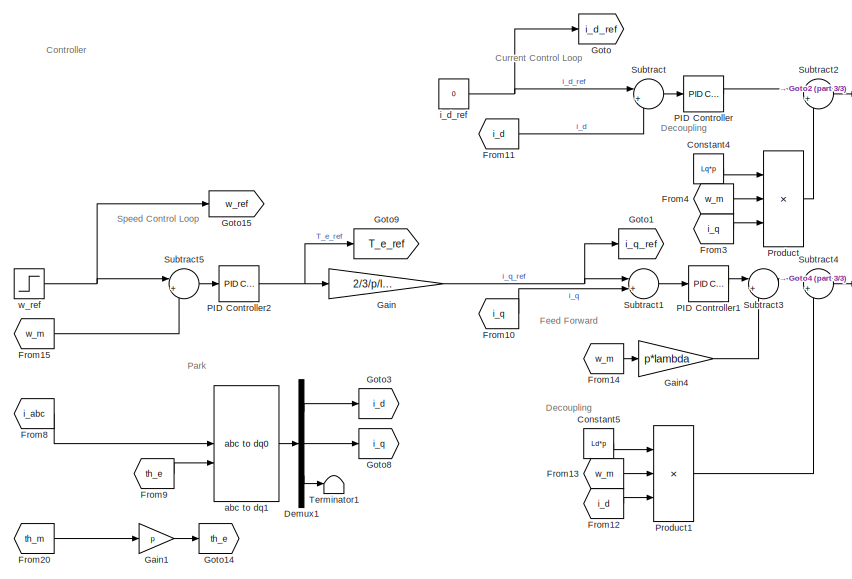
[diagram: root canvas - part 1/3, left side, full height]
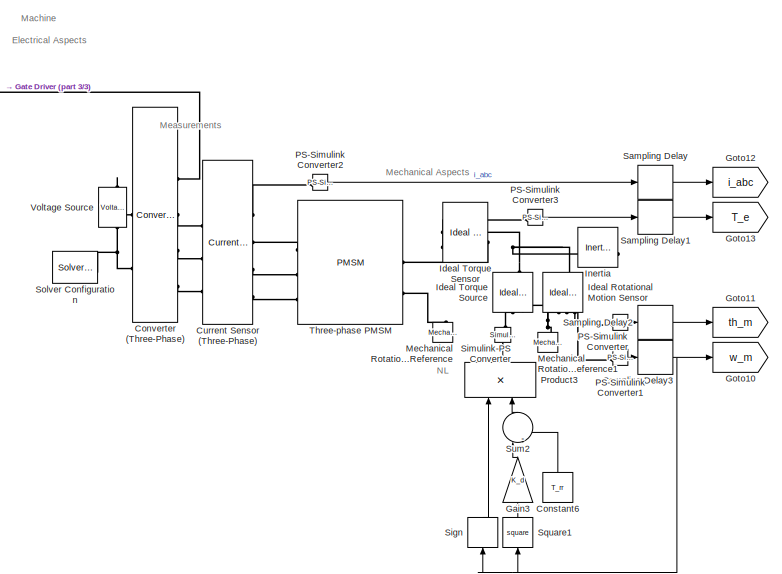
[diagram: root canvas - part 2/3, right side, full height]
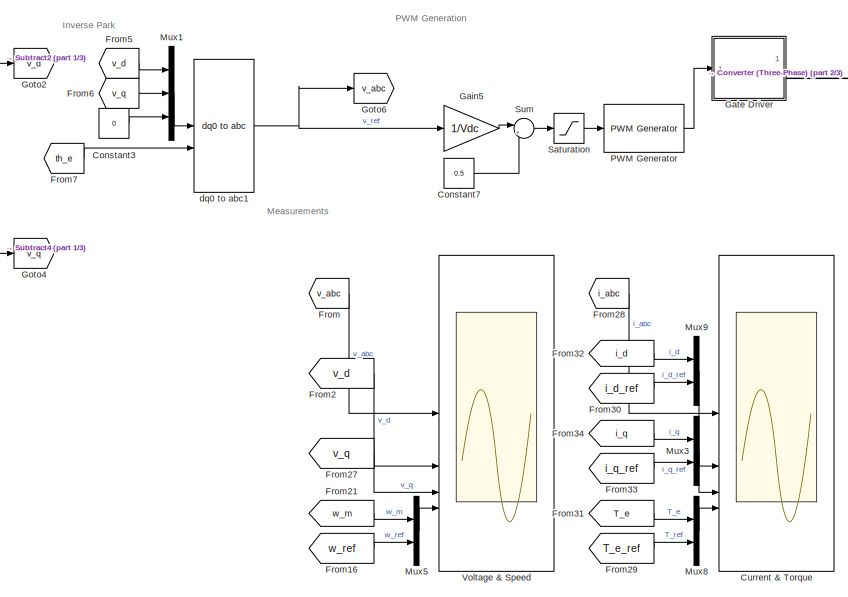
[diagram: root canvas - part 3/3, center side, full height]
MODEL slx_c1660a589263
KIND model
CONFIG AbsTol = auto
CONFIG EnableMultiTasking = off
CONFIG FixedStep = auto
CONFIG MaxStep = auto
CONFIG MinStep = auto
CONFIG RelTol = 1e-3
CONFIG SampleTimeConstraint = Unconstrained
CONFIG SolverName = VariableStepAuto
CONFIG StartTime = 0.0
CONFIG StopTime = 10.0
BLOCK [Constant] Constant3
  Value = 0
BLOCK [Constant] Constant4
  Value = Lq*p
BLOCK [Constant] Constant5
  Value = Ld*p
BLOCK [Constant] Constant6
  Commented = on
  NameLocation = right
  Value = T_rr
BLOCK [Constant] Constant7
  Value = 0.5
BLOCK [Reference] Converter (Three-Phase)  REF=ee_lib/Semiconductors &
Converters/Converters/Converter
(Three-Phase)
  SourceBlock = ee_lib/Semiconductors &\nConverters/Converters/Converter\n(Three-Phase)
  SourceType = Converter\n(Three-Phase)
BLOCK [Scope] Current & Torque
  Floating = off
  NumInputPorts = 4
  ScopeSpecificationString = Simulink.scopes.TimeScopeBlockCfg('CurrentConfiguration', extmgr.ConfigurationSet(extmgr.Configuration('Core','General UI',true,'FigureColor',[1 1 1]),extmgr.Configuration('Core','Source UI',true),extmgr.Configuration('Sources','WiredSimulink',true,'DataLogging',true,'DataLoggingSaveFormat','StructureWithTime','DataLoggingVariableName','ScopeData1'),extmgr.Configuration('Visuals','Time Domain',tru...<+4909ch>
BLOCK [Reference] Current Sensor (Three-Phase)  REF=ee_lib/Sensors &
Transducers/Current Sensor
(Three-Phase)
  SourceBlock = ee_lib/Sensors &\nTransducers/Current Sensor\n(Three-Phase)
  SourceType = Current Sensor\n(Three-Phase)
BLOCK [Demux] Demux1
  Outputs = 3
BLOCK [From] From
  GotoTag = v_abc
BLOCK [From] From10
  GotoTag = i_q
BLOCK [From] From11
  GotoTag = i_d
BLOCK [From] From12
  GotoTag = i_d
BLOCK [From] From13
  GotoTag = w_m
BLOCK [From] From14
  GotoTag = w_m
BLOCK [From] From15
  GotoTag = w_m
BLOCK [From] From16
  GotoTag = w_ref
BLOCK [From] From2
  GotoTag = v_d
BLOCK [From] From20
  GotoTag = th_m
BLOCK [From] From21
  GotoTag = w_m
BLOCK [From] From27
  GotoTag = v_q
BLOCK [From] From28
  GotoTag = i_abc
BLOCK [From] From29
  GotoTag = T_e_ref
BLOCK [From] From3
  GotoTag = i_q
BLOCK [From] From30
  GotoTag = i_d_ref
BLOCK [From] From31
  GotoTag = T_e
BLOCK [From] From32
  GotoTag = i_d
BLOCK [From] From33
  GotoTag = i_q_ref
BLOCK [From] From34
  GotoTag = i_q
BLOCK [From] From4
  GotoTag = w_m
BLOCK [From] From5
  GotoTag = v_d
BLOCK [From] From6
  GotoTag = v_q
BLOCK [From] From7
  GotoTag = th_e
BLOCK [From] From8
  GotoTag = i_abc
BLOCK [From] From9
  GotoTag = th_e
BLOCK [Gain] Gain
  Gain = 2/3/p/lambda
BLOCK [Gain] Gain1
  Gain = p
BLOCK [Gain] Gain3
  Commented = on
  Gain = K_d
  NameLocation = right
BLOCK [Gain] Gain4
  Gain = p*lambda
BLOCK [Gain] Gain5
  Gain = 1/Vdc
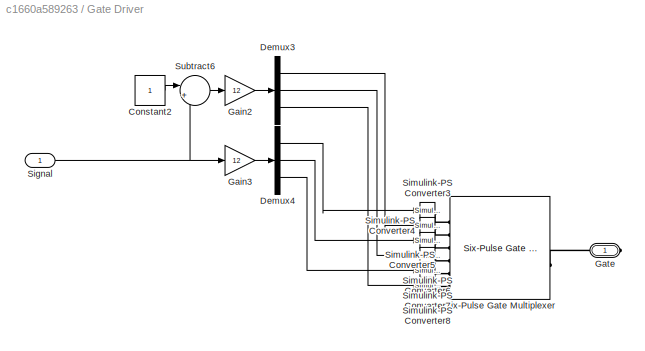
BLOCK [SubSystem] Gate Driver
BLOCK [Constant] Gate Driver/Constant2
BLOCK [Demux] Gate Driver/Demux3
  Outputs = 3
BLOCK [Demux] Gate Driver/Demux4
  Outputs = 3
BLOCK [Gain] Gate Driver/Gain2
  Gain = 12
BLOCK [Gain] Gate Driver/Gain3
  Gain = 12
BLOCK [PMIOPort] Gate Driver/Gate
  Side = Right
BLOCK [Inport] Gate Driver/Signal
BLOCK [Reference] Gate Driver/Simulink-PS Converter3  REF=nesl_utility/Simulink-PS
Converter
  SourceBlock = nesl_utility/Simulink-PS\nConverter
  SourceType = Simulink-PS\nConverter
BLOCK [Reference] Gate Driver/Simulink-PS Converter4  REF=nesl_utility/Simulink-PS
Converter
  SourceBlock = nesl_utility/Simulink-PS\nConverter
  SourceType = Simulink-PS\nConverter
BLOCK [Reference] Gate Driver/Simulink-PS Converter5  REF=nesl_utility/Simulink-PS
Converter
  SourceBlock = nesl_utility/Simulink-PS\nConverter
  SourceType = Simulink-PS\nConverter
BLOCK [Reference] Gate Driver/Simulink-PS Converter6  REF=nesl_utility/Simulink-PS
Converter
  SourceBlock = nesl_utility/Simulink-PS\nConverter
  SourceType = Simulink-PS\nConverter
BLOCK [Reference] Gate Driver/Simulink-PS Converter7  REF=nesl_utility/Simulink-PS
Converter
  SourceBlock = nesl_utility/Simulink-PS\nConverter
  SourceType = Simulink-PS\nConverter
BLOCK [Reference] Gate Driver/Simulink-PS Converter8  REF=nesl_utility/Simulink-PS
Converter
  SourceBlock = nesl_utility/Simulink-PS\nConverter
  SourceType = Simulink-PS\nConverter
BLOCK [Reference] Gate Driver/Six-Pulse Gate Multiplexer  REF=ee_lib/Semiconductors &
Converters/Converters/Six-Pulse Gate
Multiplexer
  SourceBlock = ee_lib/Semiconductors &\nConverters/Converters/Six-Pulse Gate\nMultiplexer
  SourceType = Six-Pulse Gate\nMultiplexer
BLOCK [Sum] Gate Driver/Subtract6
  Inputs = |+-
BLOCK [Goto] Goto
  GotoTag = i_d_ref
BLOCK [Goto] Goto1
  GotoTag = i_q_ref
BLOCK [Goto] Goto10
  GotoTag = w_m
BLOCK [Goto] Goto11
  GotoTag = th_m
BLOCK [Goto] Goto12
  GotoTag = i_abc
BLOCK [Goto] Goto13
  GotoTag = T_e
BLOCK [Goto] Goto14
  GotoTag = th_e
BLOCK [Goto] Goto15
  GotoTag = w_ref
BLOCK [Goto] Goto2
  GotoTag = v_d
BLOCK [Goto] Goto3
  GotoTag = i_d
BLOCK [Goto] Goto4
  GotoTag = v_q
BLOCK [Goto] Goto6
  GotoTag = v_abc
BLOCK [Goto] Goto8
  GotoTag = i_q
BLOCK [Goto] Goto9
  GotoTag = T_e_ref
BLOCK [Reference] Ideal Rotational Motion Sensor  REF=fl_lib/Mechanical/Mechanical Sensors/Ideal Rotational
Motion Sensor
  NameLocation = left
  SourceBlock = fl_lib/Mechanical/Mechanical Sensors/Ideal Rotational\nMotion Sensor
  SourceType = Ideal Rotational\nMotion Sensor
BLOCK [Reference] Ideal Torque Sensor  REF=fl_lib/Mechanical/Mechanical Sensors/Ideal Torque Sensor
  NameLocation = top
  SourceBlock = fl_lib/Mechanical/Mechanical Sensors/Ideal Torque Sensor
  SourceType = Ideal Torque Sensor
BLOCK [Reference] Ideal Torque Source  REF=fl_lib/Mechanical/Mechanical Sources/Ideal Torque Source
  Commented = on
  NameLocation = right
  SourceBlock = fl_lib/Mechanical/Mechanical Sources/Ideal Torque Source
  SourceType = Ideal Torque Source
BLOCK [Reference] Inertia  REF=fl_lib/Mechanical/Rotational Elements/Inertia
  NameLocation = top
  SourceBlock = fl_lib/Mechanical/Rotational Elements/Inertia
  SourceType = Inertia
BLOCK [Reference] Mechanical Rotational Reference  REF=fl_lib/Mechanical/Rotational Elements/Mechanical
Rotational Reference
  NameLocation = right
  SourceBlock = fl_lib/Mechanical/Rotational Elements/Mechanical\nRotational Reference
  SourceType = Mechanical\nRotational Reference
BLOCK [Reference] Mechanical Rotational Reference1  REF=fl_lib/Mechanical/Rotational Elements/Mechanical
Rotational Reference
  NameLocation = right
  SourceBlock = fl_lib/Mechanical/Rotational Elements/Mechanical\nRotational Reference
  SourceType = Mechanical\nRotational Reference
BLOCK [Mux] Mux1
  DisplayOption = bar
  Inputs = 3
BLOCK [Mux] Mux3
  DisplayOption = bar
  Inputs = 2
BLOCK [Mux] Mux5
  DisplayOption = bar
  Inputs = 2
BLOCK [Mux] Mux8
  DisplayOption = bar
  Inputs = 2
BLOCK [Mux] Mux9
  DisplayOption = bar
  Inputs = 2
BLOCK [Reference] PID Controller  REF=slpidlib/PID Controller
  LibrarySourceBlock = simulink/Continuous/PID Controller
  SourceBlock = slpidlib/PID Controller
  SourceType = PID 1dof
BLOCK [Reference] PID Controller1  REF=slpidlib/PID Controller
  LibrarySourceBlock = simulink/Continuous/PID Controller
  SourceBlock = slpidlib/PID Controller
  SourceType = PID 1dof
BLOCK [Reference] PID Controller2  REF=slpidlib/PID Controller
  LibrarySourceBlock = simulink/Continuous/PID Controller
  SourceBlock = slpidlib/PID Controller
  SourceType = PID 1dof
BLOCK [Reference] PS-Simulink Converter  REF=nesl_utility/PS-Simulink
Converter
  SourceBlock = nesl_utility/PS-Simulink\nConverter
  SourceType = PS-Simulink\nConverter
BLOCK [Reference] PS-Simulink Converter1  REF=nesl_utility/PS-Simulink
Converter
  SourceBlock = nesl_utility/PS-Simulink\nConverter
  SourceType = PS-Simulink\nConverter
BLOCK [Reference] PS-Simulink Converter2  REF=nesl_utility/PS-Simulink
Converter
  SourceBlock = nesl_utility/PS-Simulink\nConverter
  SourceType = PS-Simulink\nConverter
BLOCK [Reference] PS-Simulink Converter3  REF=nesl_utility/PS-Simulink
Converter
  SourceBlock = nesl_utility/PS-Simulink\nConverter
  SourceType = PS-Simulink\nConverter
BLOCK [Reference] PWM Generator  REF=eePwmGenerator/PWM Generator
  LibrarySourceBlock = ee_sl_lib/Pulse Width\nModulation/PWM Generator
  SourceBlock = eePwmGenerator/PWM Generator
  SourceType = PWM Generator
BLOCK [Product] Product
  Inputs = 3
BLOCK [Product] Product1
  Inputs = 3
BLOCK [Product] Product3
  Commented = on
  NameLocation = right
BLOCK [Delay] Sampling Delay
  DelayLength = 1
  InputPortMap = u0
  SampleTime = 1e-6
BLOCK [Delay] Sampling Delay1
  DelayLength = 1
  InputPortMap = u0
  SampleTime = 1e-6
BLOCK [Delay] Sampling Delay2
  DelayLength = 1
  InputPortMap = u0
  SampleTime = 1e-6
BLOCK [Delay] Sampling Delay3
  DelayLength = 1
  InitialCondition = 0
  InputPortMap = u0
  SampleTime = 1e-6
BLOCK [Saturate] Saturation
  LowerLimit = 0
  UpperLimit = 1
BLOCK [Signum] Sign
  Commented = on
  NameLocation = left
  ZeroCross = off
BLOCK [Reference] Simulink-PS Converter  REF=nesl_utility/Simulink-PS
Converter
  NameLocation = right
  SourceBlock = nesl_utility/Simulink-PS\nConverter
  SourceType = Simulink-PS\nConverter
BLOCK [Reference] Solver Configuration  REF=nesl_utility/Solver
Configuration
  SourceBlock = nesl_utility/Solver\nConfiguration
  SourceType = Solver\nConfiguration
BLOCK [Math] Square1
  Commented = on
  NameLocation = right
  Operator = square
BLOCK [Sum] Subtract
  Inputs = |+-
BLOCK [Sum] Subtract1
  Inputs = |+-
BLOCK [Sum] Subtract2
  Inputs = |+-
BLOCK [Sum] Subtract3
  Inputs = |++
BLOCK [Sum] Subtract4
  Inputs = |++
BLOCK [Sum] Subtract5
  Inputs = |+-
BLOCK [Sum] Sum
  Inputs = |++
BLOCK [Sum] Sum2
  Commented = on
  Inputs = |--
  NameLocation = right
BLOCK [Terminator] Terminator1
BLOCK [Reference] Three-phase PMSM  REF=ee_lib/Electromechanical/Permanent Magnet/PMSM
  SourceBlock = ee_lib/Electromechanical/Permanent Magnet/PMSM
  SourceType = PMSM
BLOCK [Scope] Voltage & Speed
  Floating = off
  NumInputPorts = 4
  ScopeSpecificationString = Simulink.scopes.TimeScopeBlockCfg('CurrentConfiguration', extmgr.ConfigurationSet(extmgr.Configuration('Core','General UI',true,'FigureColor',[1 1 1]),extmgr.Configuration('Core','Source UI',true),extmgr.Configuration('Sources','WiredSimulink',true,'DataLogging',true,'DataLoggingSaveFormat','StructureWithTime'),extmgr.Configuration('Visuals','Time Domain',true,'SerializedDisplays',{struct('MinYLim...<+4949ch>
BLOCK [Reference] Voltage Source  REF=ee_lib/Sources/Voltage Source
  NameLocation = right
  SourceBlock = ee_lib/Sources/Voltage Source
  SourceType = Voltage Source
BLOCK [Reference] abc to dq1  REF=spsabctodq0Lib/abc to dq0
  LibrarySourceBlock = sps_lib/Control/abc to dq0
  SourceBlock = spsabctodq0Lib/abc to dq0
  SourceType = abc to dq0 Transformation
BLOCK [Reference] dq0 to abc1  REF=spsdq0toabcLib/dq0 to abc
  LibrarySourceBlock = sps_lib/Control/dq0 to abc
  SourceBlock = spsdq0toabcLib/dq0 to abc
  SourceType = dq0 to abc Transformation
BLOCK [Constant] i_d_ref
  Value = 0
BLOCK [Step] w_ref
  After = 400
  Before = 400
  NameLocation = top
  SampleTime = 0
  Time = 5
ANNOTATION (root): Controller
ANNOTATION (root): Current Control Loop
ANNOTATION (root): Decoupling
ANNOTATION (root): Electrical Aspects
ANNOTATION (root): Feed Forward
ANNOTATION (root): Inverse Park
ANNOTATION (root): Machine
ANNOTATION (root): Measurements
ANNOTATION (root): Mechanical Aspects
ANNOTATION (root): NL
ANNOTATION (root): PWM Generation
ANNOTATION (root): Park
ANNOTATION (root): Speed Control Loop
LINE Constant3:1 -> Mux1:3
LINE Constant4:1 -> Product:1
LINE Constant5:1 -> Product1:1
LINE Constant6:1 -> Sum2:2
LINE Constant7:1 -> Sum:2
LINE Demux1:1 -> Goto3:1
LINE Demux1:2 -> Goto8:1
LINE Demux1:3 -> Terminator1:1
LINE From10:1 -> Subtract1:2
LINE From11:1 -> Subtract:2
LINE From12:1 -> Product1:3
LINE From13:1 -> Product1:2
LINE From14:1 -> Gain4:1
LINE From15:1 -> Subtract5:2
LINE From16:1 -> Mux5:2
LINE From20:1 -> Gain1:1
LINE From21:1 -> Mux5:1
LINE From27:1 -> Voltage & Speed:3
LINE From28:1 -> Current & Torque:1
LINE From29:1 -> Mux8:2
LINE From2:1 -> Voltage & Speed:2
LINE From30:1 -> Mux9:2
LINE From31:1 -> Mux8:1
LINE From32:1 -> Mux9:1
LINE From33:1 -> Mux3:2
LINE From34:1 -> Mux3:1
LINE From3:1 -> Product:3
LINE From4:1 -> Product:2
LINE From5:1 -> Mux1:1
LINE From6:1 -> Mux1:2
LINE From7:1 -> dq0 to abc1:2
LINE From8:1 -> abc to dq1:1
LINE From9:1 -> abc to dq1:2
LINE From:1 -> Voltage & Speed:1
LINE Gain1:1 -> Goto14:1
LINE Gain3:1 -> Sum2:1
LINE Gain4:1 -> Subtract3:2
LINE Gain5:1 -> Sum:1
NET Gain:1 -> Goto1:1, Subtract1:1
LINE Gate Driver/Constant2:1 -> Gate Driver/Subtract6:1
LINE Gate Driver/Demux3:1 -> Gate Driver/Simulink-PS Converter4:1
LINE Gate Driver/Demux3:2 -> Gate Driver/Simulink-PS Converter6:1
LINE Gate Driver/Demux3:3 -> Gate Driver/Simulink-PS Converter8:1
LINE Gate Driver/Demux4:1 -> Gate Driver/Simulink-PS Converter3:1
LINE Gate Driver/Demux4:2 -> Gate Driver/Simulink-PS Converter5:1
LINE Gate Driver/Demux4:3 -> Gate Driver/Simulink-PS Converter7:1
LINE Gate Driver/Gain2:1 -> Gate Driver/Demux3:1
LINE Gate Driver/Gain3:1 -> Gate Driver/Demux4:1
NET Gate Driver/Signal:1 -> Gate Driver/Gain3:1, Gate Driver/Subtract6:2
LINE Gate Driver/Subtract6:1 -> Gate Driver/Gain2:1
LINE Mux1:1 -> dq0 to abc1:1
LINE Mux3:1 -> Current & Torque:3
LINE Mux5:1 -> Voltage & Speed:4
LINE Mux8:1 -> Current & Torque:4
LINE Mux9:1 -> Current & Torque:2
LINE PID Controller1:1 -> Subtract3:1
NET PID Controller2:1 -> Gain:1, Goto9:1
LINE PID Controller:1 -> Subtract2:1
LINE PS-Simulink Converter1:1 -> Sampling Delay3:1
LINE PS-Simulink Converter2:1 -> Sampling Delay:1
LINE PS-Simulink Converter3:1 -> Sampling Delay1:1
LINE PS-Simulink Converter:1 -> Sampling Delay2:1
LINE PWM Generator:1 -> Gate Driver:1
LINE Product1:1 -> Subtract4:2
LINE Product3:1 -> Simulink-PS Converter:1
LINE Product:1 -> Subtract2:2
LINE Sampling Delay1:1 -> Goto13:1
LINE Sampling Delay2:1 -> Goto11:1
NET Sampling Delay3:1 -> Goto10:1, Sign:1, Square1:1
LINE Sampling Delay:1 -> Goto12:1
LINE Saturation:1 -> PWM Generator:1
LINE Sign:1 -> Product3:1
LINE Square1:1 -> Gain3:1
LINE Subtract1:1 -> PID Controller1:1
LINE Subtract2:1 -> Goto2:1
LINE Subtract3:1 -> Subtract4:1
LINE Subtract4:1 -> Goto4:1
LINE Subtract5:1 -> PID Controller2:1
LINE Subtract:1 -> PID Controller:1
LINE Sum2:1 -> Product3:2
LINE Sum:1 -> Saturation:1
LINE abc to dq1:1 -> Demux1:1
NET dq0 to abc1:1 -> Gain5:1, Goto6:1
NET i_d_ref:1 -> Goto:1, Subtract:1
NET w_ref:1 -> Goto15:1, Subtract5:1
PLINE Converter (Three-Phase):LConn1 -- Gate Driver:RConn1
PLINE Converter (Three-Phase):LConn2 -- Current Sensor (Three-Phase):LConn1
PLINE Converter (Three-Phase):LConn3 -- Current Sensor (Three-Phase):LConn2
PLINE Converter (Three-Phase):LConn4 -- Current Sensor (Three-Phase):LConn3
PLINE Converter (Three-Phase):RConn1 -- Voltage Source:LConn1
PNET net1: Converter (Three-Phase):RConn2 -- Solver Configuration:RConn1 -- Voltage Source:RConn1
PLINE Current Sensor (Three-Phase):RConn1 -- PS-Simulink Converter2:LConn1
PLINE Current Sensor (Three-Phase):RConn2 -- Three-phase PMSM:LConn1
PLINE Current Sensor (Three-Phase):RConn3 -- Three-phase PMSM:LConn2
PLINE Current Sensor (Three-Phase):RConn4 -- Three-phase PMSM:LConn3
PLINE Gate Driver/Gate:RConn1 -- Gate Driver/Six-Pulse Gate Multiplexer:RConn1
PLINE Gate Driver/Simulink-PS Converter3:RConn1 -- Gate Driver/Six-Pulse Gate Multiplexer:LConn1
PLINE Gate Driver/Simulink-PS Converter4:RConn1 -- Gate Driver/Six-Pulse Gate Multiplexer:LConn2
PLINE Gate Driver/Simulink-PS Converter5:RConn1 -- Gate Driver/Six-Pulse Gate Multiplexer:LConn3
PLINE Gate Driver/Simulink-PS Converter6:RConn1 -- Gate Driver/Six-Pulse Gate Multiplexer:LConn4
PLINE Gate Driver/Simulink-PS Converter7:RConn1 -- Gate Driver/Six-Pulse Gate Multiplexer:LConn5
PLINE Gate Driver/Simulink-PS Converter8:RConn1 -- Gate Driver/Six-Pulse Gate Multiplexer:LConn6
PNET net2: Ideal Rotational Motion Sensor:LConn1 -- Ideal Torque Sensor:RConn1 -- Ideal Torque Source:LConn1 -- Inertia:LConn1
PNET net3: Ideal Rotational Motion Sensor:RConn1 -- Ideal Torque Source:RConn2 -- Mechanical Rotational Reference1:LConn1
PLINE Ideal Rotational Motion Sensor:RConn2 -- PS-Simulink Converter1:LConn1
PLINE Ideal Rotational Motion Sensor:RConn3 -- PS-Simulink Converter:LConn1
PLINE Ideal Torque Sensor:LConn1 -- Three-phase PMSM:RConn1
PLINE Ideal Torque Sensor:RConn2 -- PS-Simulink Converter3:LConn1
PLINE Ideal Torque Source:RConn1 -- Simulink-PS Converter:RConn1
PLINE Mechanical Rotational Reference:LConn1 -- Three-phase PMSM:RConn2
note: NET lines group one-source signal fan-out (src -> all destinations, sorted); 1:1 wires keep LINE; PNET lines group multi-terminal physical nets as a canonical sorted terminal list (undirected conserving connections); 2-terminal nets keep the pairwise PLINE form
